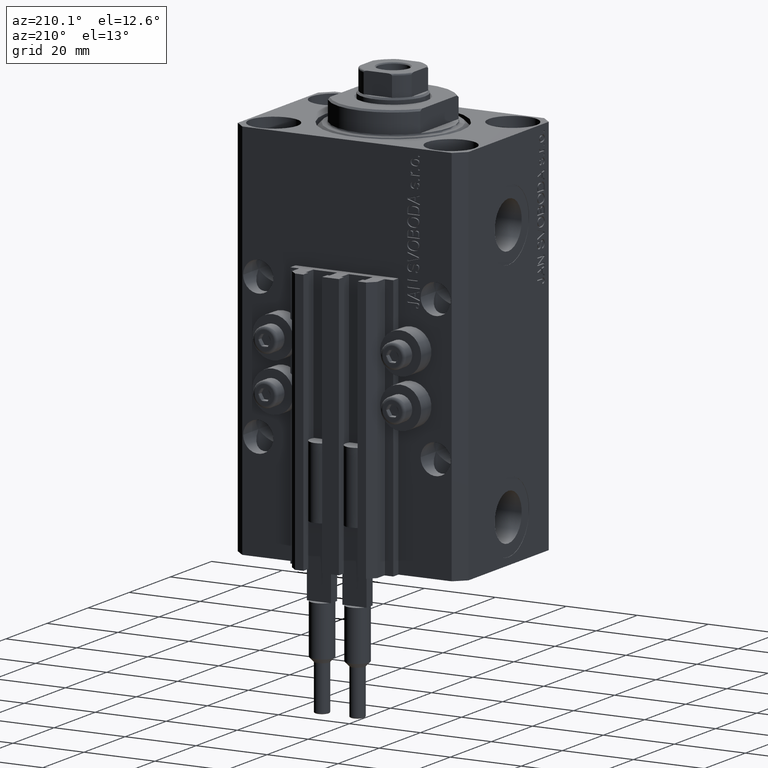
[diagram: clean part render]
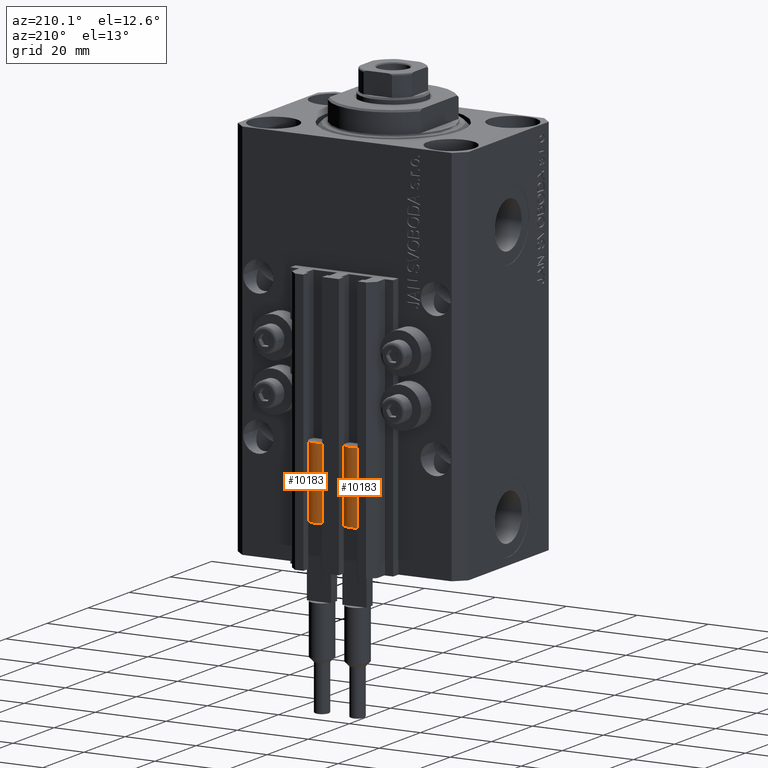
[diagram: same view with one multi-face feature highlighted, each face labeled with its STEP entity id]
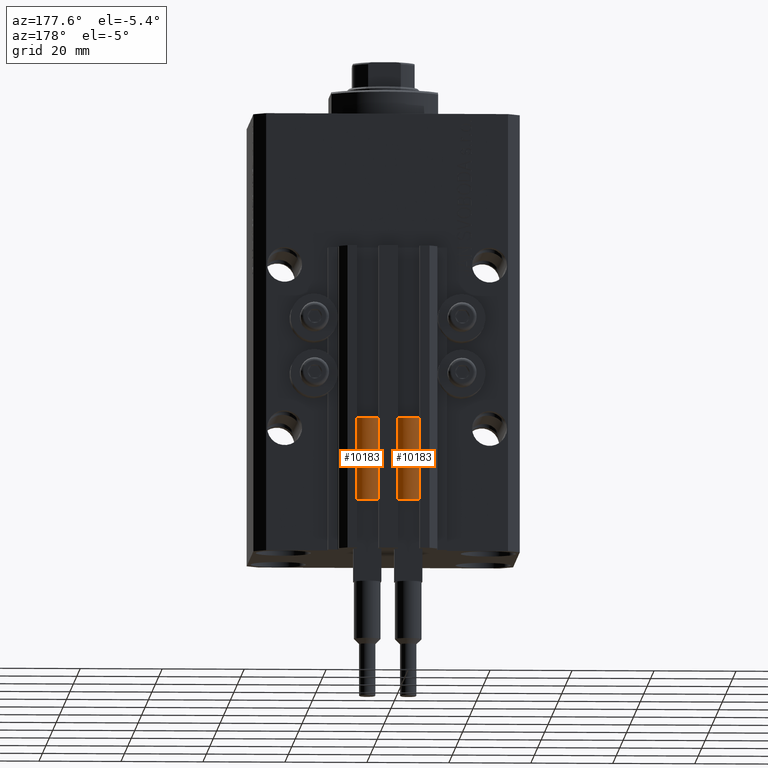
[diagram: same view with one multi-face feature highlighted, each face labeled with its STEP entity id]
A machine part, auxiliary view. The highlighted faces form ONE feature: a constant-radius fillet chain: 2 tangent blend faces with common blend radius 3.4 mm. The faces share edges in the B-rep.
A second angle (auxiliary view) of the same feature is appended — it is thin or edge-on in the first view.
Their STEP definitions:
[1] entity #10183 (Cylinder):
#349 = LINE ( 'NONE', #582, #3248 ) ;
#582 = CARTESIAN_POINT ( 'NONE',  ( -3.400000000000000355, 0.000000000000000000, 20.00000000000000000 ) ) ;
#2077 = DIRECTION ( 'NONE',  ( 0.000000000000000000, 0.000000000000000000, 1.000000000000000000 ) ) ;
#3248 = VECTOR ( 'NONE', #3306, 1000.000000000000000 ) ;
#3306 = DIRECTION ( 'NONE',  ( -0.000000000000000000, -0.000000000000000000, -1.000000000000000000 ) ) ;
#6746 = VERTEX_POINT ( 'NONE', #46107 ) ;
#7149 = CARTESIAN_POINT ( 'NONE',  ( 0.000000000000000000, 0.000000000000000000, 20.00000000000000000 ) ) ;
#8475 = CIRCLE ( 'NONE', #32019, 3.400000000000000355 ) ;
#8773 = LINE ( 'NONE', #42641, #36233 ) ;
#8990 = CARTESIAN_POINT ( 'NONE',  ( 3.051229260478471428, 1.500000000000000000, 20.00000000000000000 ) ) ;
#9018 = DIRECTION ( 'NONE',  ( -0.000000000000000000, -0.000000000000000000, -1.000000000000000000 ) ) ;
#9256 = VERTEX_POINT ( 'NONE', #26549 ) ;
#9264 = CIRCLE ( 'NONE', #29605, 3.400000000000000355 ) ;
#9766 = ORIENTED_EDGE ( 'NONE', *, *, #43847, .T. ) ;
#10183 = ADVANCED_FACE ( 'NONE', ( #29216 ), #40777, .T. ) ;
#12150 = ORIENTED_EDGE ( 'NONE', *, *, #31076, .F. ) ;
#12284 = DIRECTION ( 'NONE',  ( 1.000000000000000000, 0.000000000000000000, 0.000000000000000000 ) ) ;
#12410 = CARTESIAN_POINT ( 'NONE',  ( 3.400000000000000355, 0.000000000000000000, 20.00000000000000000 ) ) ;
#13210 = CIRCLE ( 'NONE', #38295, 3.400000000000000355 ) ;
#15160 = VERTEX_POINT ( 'NONE', #8990 ) ;
#17014 = DIRECTION ( 'NONE',  ( 1.000000000000000000, 0.000000000000000000, 0.000000000000000000 ) ) ;
#19892 = CARTESIAN_POINT ( 'NONE',  ( 0.000000000000000000, 0.000000000000000000, 20.00000000000000000 ) ) ;
#19934 = DIRECTION ( 'NONE',  ( 0.000000000000000000, 0.000000000000000000, 1.000000000000000000 ) ) ;
#20376 = DIRECTION ( 'NONE',  ( 0.000000000000000000, 0.000000000000000000, 1.000000000000000000 ) ) ;
#20380 = DIRECTION ( 'NONE',  ( 0.000000000000000000, 0.000000000000000000, 1.000000000000000000 ) ) ;
#20697 = CARTESIAN_POINT ( 'NONE',  ( 0.000000000000000000, 0.000000000000000000, 20.00000000000000000 ) ) ;
#20743 = CARTESIAN_POINT ( 'NONE',  ( -3.400000000000000355, 0.000000000000000000, 0.000000000000000000 ) ) ;
#21608 = EDGE_CURVE ( 'NONE', #15160, #6746, #46300, .T. ) ;
#22544 = EDGE_LOOP ( 'NONE', ( #40132, #9766, #34655, #45847, #12150, #28198 ) ) ;
#25528 = DIRECTION ( 'NONE',  ( -1.000000000000000000, 0.000000000000000000, 0.000000000000000000 ) ) ;
#26549 = CARTESIAN_POINT ( 'NONE',  ( 3.400000000000000355, 4.163799117101001052E-16, 0.000000000000000000 ) ) ;
#26582 = EDGE_CURVE ( 'NONE', #32799, #31695, #349, .T. ) ;
#27712 = EDGE_CURVE ( 'NONE', #9256, #31695, #13210, .T. ) ;
#28198 = ORIENTED_EDGE ( 'NONE', *, *, #21608, .F. ) ;
#28457 = DIRECTION ( 'NONE',  ( 1.000000000000000000, 0.000000000000000000, 0.000000000000000000 ) ) ;
#29216 = FACE_OUTER_BOUND ( 'NONE', #22544, .T. ) ;
#29605 = AXIS2_PLACEMENT_3D ( 'NONE', #20697, #2077, #17014 ) ;
#29993 = EDGE_CURVE ( 'NONE', #31645, #15160, #9264, .T. ) ;
#30521 = CARTESIAN_POINT ( 'NONE',  ( -3.399999999999999467, -4.915049848600952119E-16, 20.00000000000000000 ) ) ;
#31076 = EDGE_CURVE ( 'NONE', #6746, #32799, #8475, .T. ) ;
#31645 = VERTEX_POINT ( 'NONE', #12410 ) ;
#31695 = VERTEX_POINT ( 'NONE', #20743 ) ;
#31911 = CARTESIAN_POINT ( 'NONE',  ( 0.000000000000000000, 0.000000000000000000, 0.000000000000000000 ) ) ;
#32019 = AXIS2_PLACEMENT_3D ( 'NONE', #19892, #20380, #12284 ) ;
#32166 = AXIS2_PLACEMENT_3D ( 'NONE', #46214, #19934, #45236 ) ;
#32799 = VERTEX_POINT ( 'NONE', #30521 ) ;
#34655 = ORIENTED_EDGE ( 'NONE', *, *, #27712, .T. ) ;
#36233 = VECTOR ( 'NONE', #9018, 1000.000000000000000 ) ;
#38295 = AXIS2_PLACEMENT_3D ( 'NONE', #31911, #20376, #28457 ) ;
#40132 = ORIENTED_EDGE ( 'NONE', *, *, #29993, .F. ) ;
#40777 = CYLINDRICAL_SURFACE ( 'NONE', #43688, 3.400000000000000355 ) ;
#42641 = CARTESIAN_POINT ( 'NONE',  ( 3.400000000000000355, 4.163799117101001052E-16, 20.00000000000000000 ) ) ;
#43688 = AXIS2_PLACEMENT_3D ( 'NONE', #7149, #48137, #25528 ) ;
#43847 = EDGE_CURVE ( 'NONE', #31645, #9256, #8773, .T. ) ;
#45236 = DIRECTION ( 'NONE',  ( 1.000000000000000000, 0.000000000000000000, 0.000000000000000000 ) ) ;
#45847 = ORIENTED_EDGE ( 'NONE', *, *, #26582, .F. ) ;
#46107 = CARTESIAN_POINT ( 'NONE',  ( -3.051229260478471428, 1.500000000000000000, 20.00000000000000000 ) ) ;
#46214 = CARTESIAN_POINT ( 'NONE',  ( 0.000000000000000000, 0.000000000000000000, 20.00000000000000000 ) ) ;
#46300 = CIRCLE ( 'NONE', #32166, 3.400000000000000355 ) ;
#48137 = DIRECTION ( 'NONE',  ( -0.000000000000000000, -0.000000000000000000, -1.000000000000000000 ) ) ;
[2] entity #10183 (Cylinder):
#349 = LINE ( 'NONE', #582, #3248 ) ;
#582 = CARTESIAN_POINT ( 'NONE',  ( -3.400000000000000355, 0.000000000000000000, 20.00000000000000000 ) ) ;
#2077 = DIRECTION ( 'NONE',  ( 0.000000000000000000, 0.000000000000000000, 1.000000000000000000 ) ) ;
#3248 = VECTOR ( 'NONE', #3306, 1000.000000000000000 ) ;
#3306 = DIRECTION ( 'NONE',  ( -0.000000000000000000, -0.000000000000000000, -1.000000000000000000 ) ) ;
#6746 = VERTEX_POINT ( 'NONE', #46107 ) ;
#7149 = CARTESIAN_POINT ( 'NONE',  ( 0.000000000000000000, 0.000000000000000000, 20.00000000000000000 ) ) ;
#8475 = CIRCLE ( 'NONE', #32019, 3.400000000000000355 ) ;
#8773 = LINE ( 'NONE', #42641, #36233 ) ;
#8990 = CARTESIAN_POINT ( 'NONE',  ( 3.051229260478471428, 1.500000000000000000, 20.00000000000000000 ) ) ;
#9018 = DIRECTION ( 'NONE',  ( -0.000000000000000000, -0.000000000000000000, -1.000000000000000000 ) ) ;
#9256 = VERTEX_POINT ( 'NONE', #26549 ) ;
#9264 = CIRCLE ( 'NONE', #29605, 3.400000000000000355 ) ;
#9766 = ORIENTED_EDGE ( 'NONE', *, *, #43847, .T. ) ;
#10183 = ADVANCED_FACE ( 'NONE', ( #29216 ), #40777, .T. ) ;
#12150 = ORIENTED_EDGE ( 'NONE', *, *, #31076, .F. ) ;
#12284 = DIRECTION ( 'NONE',  ( 1.000000000000000000, 0.000000000000000000, 0.000000000000000000 ) ) ;
#12410 = CARTESIAN_POINT ( 'NONE',  ( 3.400000000000000355, 0.000000000000000000, 20.00000000000000000 ) ) ;
#13210 = CIRCLE ( 'NONE', #38295, 3.400000000000000355 ) ;
#15160 = VERTEX_POINT ( 'NONE', #8990 ) ;
#17014 = DIRECTION ( 'NONE',  ( 1.000000000000000000, 0.000000000000000000, 0.000000000000000000 ) ) ;
#19892 = CARTESIAN_POINT ( 'NONE',  ( 0.000000000000000000, 0.000000000000000000, 20.00000000000000000 ) ) ;
#19934 = DIRECTION ( 'NONE',  ( 0.000000000000000000, 0.000000000000000000, 1.000000000000000000 ) ) ;
#20376 = DIRECTION ( 'NONE',  ( 0.000000000000000000, 0.000000000000000000, 1.000000000000000000 ) ) ;
#20380 = DIRECTION ( 'NONE',  ( 0.000000000000000000, 0.000000000000000000, 1.000000000000000000 ) ) ;
#20697 = CARTESIAN_POINT ( 'NONE',  ( 0.000000000000000000, 0.000000000000000000, 20.00000000000000000 ) ) ;
#20743 = CARTESIAN_POINT ( 'NONE',  ( -3.400000000000000355, 0.000000000000000000, 0.000000000000000000 ) ) ;
#21608 = EDGE_CURVE ( 'NONE', #15160, #6746, #46300, .T. ) ;
#22544 = EDGE_LOOP ( 'NONE', ( #40132, #9766, #34655, #45847, #12150, #28198 ) ) ;
#25528 = DIRECTION ( 'NONE',  ( -1.000000000000000000, 0.000000000000000000, 0.000000000000000000 ) ) ;
#26549 = CARTESIAN_POINT ( 'NONE',  ( 3.400000000000000355, 4.163799117101001052E-16, 0.000000000000000000 ) ) ;
#26582 = EDGE_CURVE ( 'NONE', #32799, #31695, #349, .T. ) ;
#27712 = EDGE_CURVE ( 'NONE', #9256, #31695, #13210, .T. ) ;
#28198 = ORIENTED_EDGE ( 'NONE', *, *, #21608, .F. ) ;
#28457 = DIRECTION ( 'NONE',  ( 1.000000000000000000, 0.000000000000000000, 0.000000000000000000 ) ) ;
#29216 = FACE_OUTER_BOUND ( 'NONE', #22544, .T. ) ;
#29605 = AXIS2_PLACEMENT_3D ( 'NONE', #20697, #2077, #17014 ) ;
#29993 = EDGE_CURVE ( 'NONE', #31645, #15160, #9264, .T. ) ;
#30521 = CARTESIAN_POINT ( 'NONE',  ( -3.399999999999999467, -4.915049848600952119E-16, 20.00000000000000000 ) ) ;
#31076 = EDGE_CURVE ( 'NONE', #6746, #32799, #8475, .T. ) ;
#31645 = VERTEX_POINT ( 'NONE', #12410 ) ;
#31695 = VERTEX_POINT ( 'NONE', #20743 ) ;
#31911 = CARTESIAN_POINT ( 'NONE',  ( 0.000000000000000000, 0.000000000000000000, 0.000000000000000000 ) ) ;
#32019 = AXIS2_PLACEMENT_3D ( 'NONE', #19892, #20380, #12284 ) ;
#32166 = AXIS2_PLACEMENT_3D ( 'NONE', #46214, #19934, #45236 ) ;
#32799 = VERTEX_POINT ( 'NONE', #30521 ) ;
#34655 = ORIENTED_EDGE ( 'NONE', *, *, #27712, .T. ) ;
#36233 = VECTOR ( 'NONE', #9018, 1000.000000000000000 ) ;
#38295 = AXIS2_PLACEMENT_3D ( 'NONE', #31911, #20376, #28457 ) ;
#40132 = ORIENTED_EDGE ( 'NONE', *, *, #29993, .F. ) ;
#40777 = CYLINDRICAL_SURFACE ( 'NONE', #43688, 3.400000000000000355 ) ;
#42641 = CARTESIAN_POINT ( 'NONE',  ( 3.400000000000000355, 4.163799117101001052E-16, 20.00000000000000000 ) ) ;
#43688 = AXIS2_PLACEMENT_3D ( 'NONE', #7149, #48137, #25528 ) ;
#43847 = EDGE_CURVE ( 'NONE', #31645, #9256, #8773, .T. ) ;
#45236 = DIRECTION ( 'NONE',  ( 1.000000000000000000, 0.000000000000000000, 0.000000000000000000 ) ) ;
#45847 = ORIENTED_EDGE ( 'NONE', *, *, #26582, .F. ) ;
#46107 = CARTESIAN_POINT ( 'NONE',  ( -3.051229260478471428, 1.500000000000000000, 20.00000000000000000 ) ) ;
#46214 = CARTESIAN_POINT ( 'NONE',  ( 0.000000000000000000, 0.000000000000000000, 20.00000000000000000 ) ) ;
#46300 = CIRCLE ( 'NONE', #32166, 3.400000000000000355 ) ;
#48137 = DIRECTION ( 'NONE',  ( -0.000000000000000000, -0.000000000000000000, -1.000000000000000000 ) ) ;